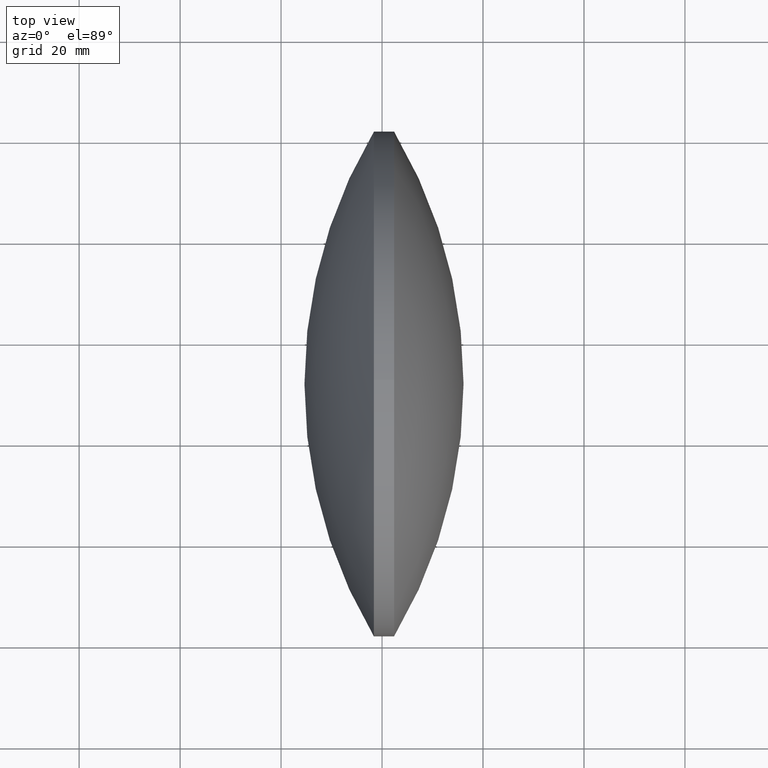
[diagram: clean part render]
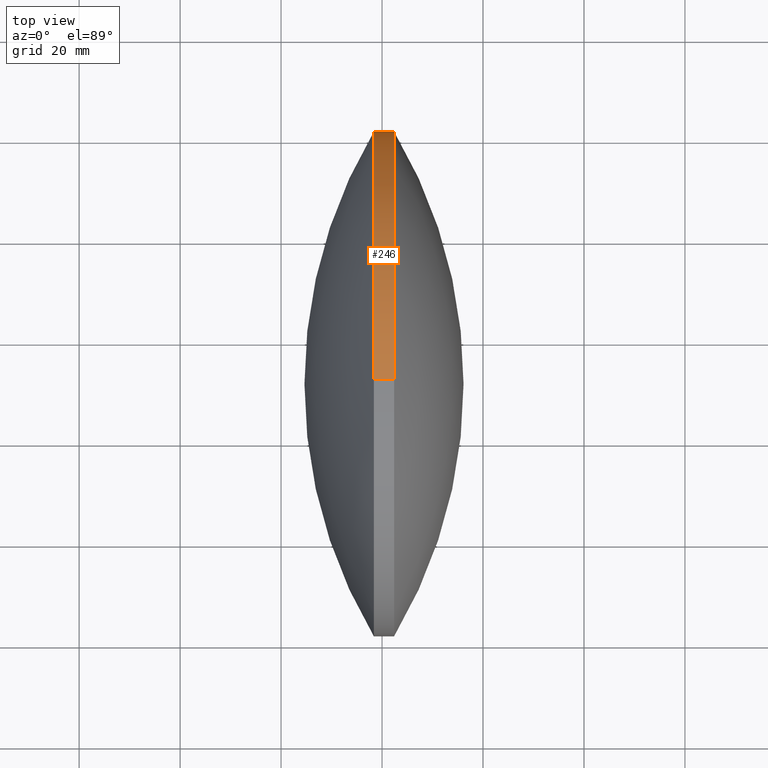
[diagram: same view with one face highlighted and labeled with its STEP entity id]
A machine part, top view. The second image highlights one B-rep face of the part: STEP entity #246.
In plain terms, the highlighted cylindrical surface (partial cylindrical patch) has radius 50 mm, axis along (-1, -0, -0).
Its self-contained STEP definition (entity closure, byte-faithful):
#1 = CARTESIAN_POINT ( 'NONE',  ( 342.3865896640226700, 191.4020197763163700, 0.0000000000000000000 ) ) ;
#5 = DIRECTION ( 'NONE',  ( 0.0000000000000000000, 0.0000000000000000000, 1.000000000000000000 ) ) ;
#8 = EDGE_CURVE ( 'NONE', #128, #105, #80, .T. ) ;
#17 = EDGE_CURVE ( 'NONE', #214, #304, #185, .T. ) ;
#19 = VERTEX_POINT ( 'NONE', #103 ) ;
#31 = DIRECTION ( 'NONE',  ( -1.000000000000000000, -0.0000000000000000000, -0.0000000000000000000 ) ) ;
#32 = CARTESIAN_POINT ( 'NONE',  ( 315.8819104246255200, 191.4020197763163700, 49.99999999999951700 ) ) ;
#49 = AXIS2_PLACEMENT_3D ( 'NONE', #276, #278, #303 ) ;
#53 = ORIENTED_EDGE ( 'NONE', *, *, #137, .F. ) ;
#58 = CIRCLE ( 'NONE', #49, 49.99999999999951700 ) ;
#64 = CARTESIAN_POINT ( 'NONE',  ( 342.3865896640226700, 191.4020197763163700, -49.99999999999951700 ) ) ;
#66 = CYLINDRICAL_SURFACE ( 'NONE', #230, 49.99999999999951700 ) ;
#68 = AXIS2_PLACEMENT_3D ( 'NONE', #135, #84, #320 ) ;
#78 = EDGE_CURVE ( 'NONE', #19, #244, #333, .T. ) ;
#80 = CIRCLE ( 'NONE', #127, 49.99999999999951700 ) ;
#81 = DIRECTION ( 'NONE',  ( -1.000000000000000000, -0.0000000000000000000, -0.0000000000000000000 ) ) ;
#84 = DIRECTION ( 'NONE',  ( -1.000000000000000000, -0.0000000000000000000, -0.0000000000000000000 ) ) ;
#85 = ORIENTED_EDGE ( 'NONE', *, *, #205, .T. ) ;
#90 = VECTOR ( 'NONE', #31, 1000.000000000000000 ) ;
#103 = CARTESIAN_POINT ( 'NONE',  ( 338.3865896640227200, 191.4020197763163700, 49.99999999999951700 ) ) ;
#105 = VERTEX_POINT ( 'NONE', #109 ) ;
#109 = CARTESIAN_POINT ( 'NONE',  ( 342.3865896640226700, 241.4020197763158800, 0.0000000000000000000 ) ) ;
#127 = AXIS2_PLACEMENT_3D ( 'NONE', #1, #213, #156 ) ;
#128 = VERTEX_POINT ( 'NONE', #189 ) ;
#129 = CARTESIAN_POINT ( 'NONE',  ( 315.8819104246255200, 191.4020197763163700, -49.99999999999951700 ) ) ;
#135 = CARTESIAN_POINT ( 'NONE',  ( 338.3865896640227200, 191.4020197763163700, 0.0000000000000000000 ) ) ;
#137 = EDGE_CURVE ( 'NONE', #244, #304, #162, .T. ) ;
#144 = VECTOR ( 'NONE', #81, 1000.000000000000000 ) ;
#149 = ORIENTED_EDGE ( 'NONE', *, *, #335, .F. ) ;
#151 = ORIENTED_EDGE ( 'NONE', *, *, #8, .T. ) ;
#156 = DIRECTION ( 'NONE',  ( 0.0000000000000000000, 0.0000000000000000000, 1.000000000000000000 ) ) ;
#162 = CIRCLE ( 'NONE', #227, 49.99999999999951700 ) ;
#175 = DIRECTION ( 'NONE',  ( -1.000000000000000000, -0.0000000000000000000, -0.0000000000000000000 ) ) ;
#185 = LINE ( 'NONE', #129, #144 ) ;
#189 = CARTESIAN_POINT ( 'NONE',  ( 342.3865896640226700, 191.4020197763163700, 49.99999999999951700 ) ) ;
#193 = CARTESIAN_POINT ( 'NONE',  ( 338.3865896640227200, 241.4020197763158300, 0.0000000000000000000 ) ) ;
#202 = FACE_OUTER_BOUND ( 'NONE', #242, .T. ) ;
#205 = EDGE_CURVE ( 'NONE', #105, #214, #58, .T. ) ;
#213 = DIRECTION ( 'NONE',  ( -1.000000000000000000, -0.0000000000000000000, -0.0000000000000000000 ) ) ;
#214 = VERTEX_POINT ( 'NONE', #64 ) ;
#220 = DIRECTION ( 'NONE',  ( -1.000000000000000000, -0.0000000000000000000, -0.0000000000000000000 ) ) ;
#227 = AXIS2_PLACEMENT_3D ( 'NONE', #235, #175, #260 ) ;
#230 = AXIS2_PLACEMENT_3D ( 'NONE', #291, #220, #5 ) ;
#235 = CARTESIAN_POINT ( 'NONE',  ( 338.3865896640227200, 191.4020197763163700, 0.0000000000000000000 ) ) ;
#242 = EDGE_LOOP ( 'NONE', ( #85, #275, #53, #293, #149, #151 ) ) ;
#244 = VERTEX_POINT ( 'NONE', #193 ) ;
#246 = ADVANCED_FACE ( 'NONE', ( #202 ), #66, .T. ) ;
#260 = DIRECTION ( 'NONE',  ( 0.0000000000000000000, 0.0000000000000000000, 1.000000000000000000 ) ) ;
#275 = ORIENTED_EDGE ( 'NONE', *, *, #17, .T. ) ;
#276 = CARTESIAN_POINT ( 'NONE',  ( 342.3865896640226700, 191.4020197763163700, 0.0000000000000000000 ) ) ;
#278 = DIRECTION ( 'NONE',  ( -1.000000000000000000, -0.0000000000000000000, -0.0000000000000000000 ) ) ;
#291 = CARTESIAN_POINT ( 'NONE',  ( 315.8819104246255200, 191.4020197763163700, 0.0000000000000000000 ) ) ;
#293 = ORIENTED_EDGE ( 'NONE', *, *, #78, .F. ) ;
#302 = CARTESIAN_POINT ( 'NONE',  ( 338.3865896640227200, 191.4020197763163700, -49.99999999999951700 ) ) ;
#303 = DIRECTION ( 'NONE',  ( 0.0000000000000000000, 0.0000000000000000000, 1.000000000000000000 ) ) ;
#304 = VERTEX_POINT ( 'NONE', #302 ) ;
#320 = DIRECTION ( 'NONE',  ( 0.0000000000000000000, 0.0000000000000000000, 1.000000000000000000 ) ) ;
#333 = CIRCLE ( 'NONE', #68, 49.99999999999951700 ) ;
#335 = EDGE_CURVE ( 'NONE', #128, #19, #343, .T. ) ;
#343 = LINE ( 'NONE', #32, #90 ) ;